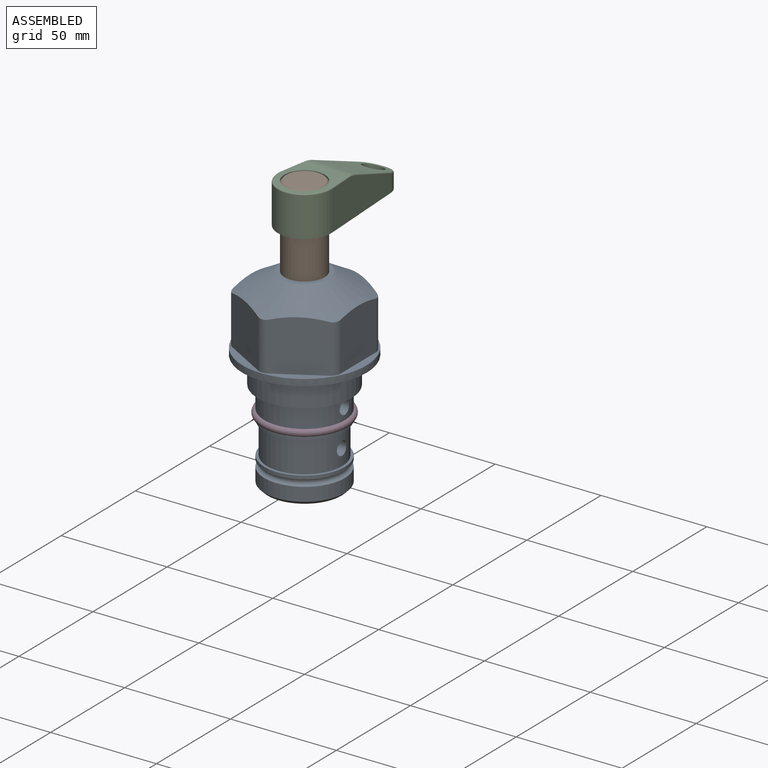
[diagram: assembled view]
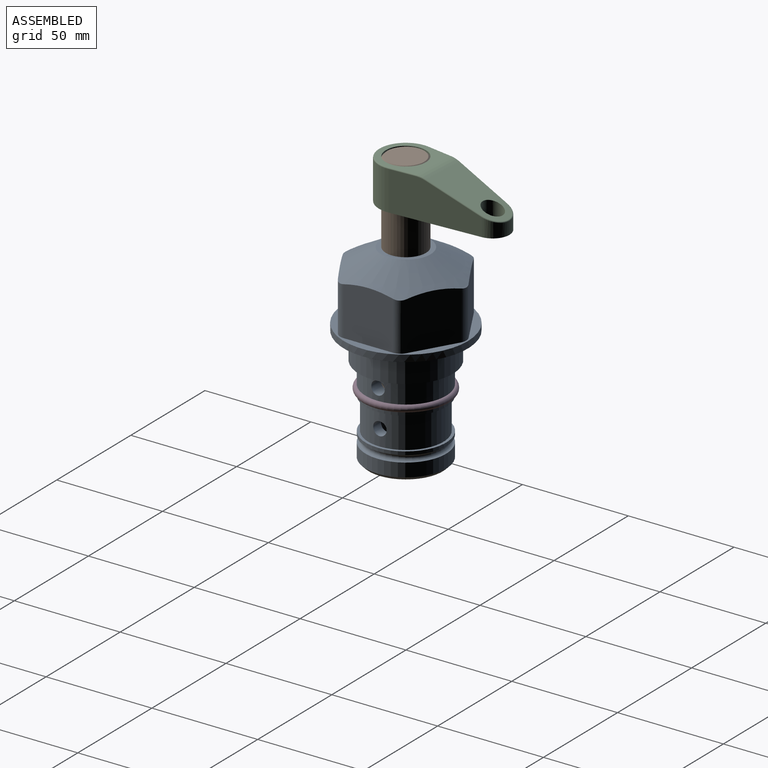
[diagram: assembled view, second angle]
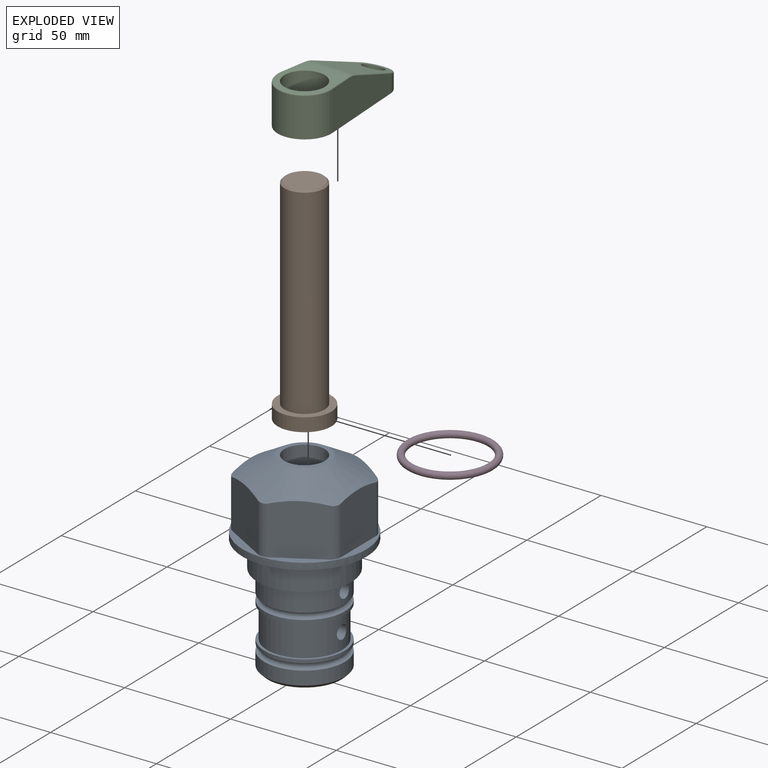
[diagram: exploded view]
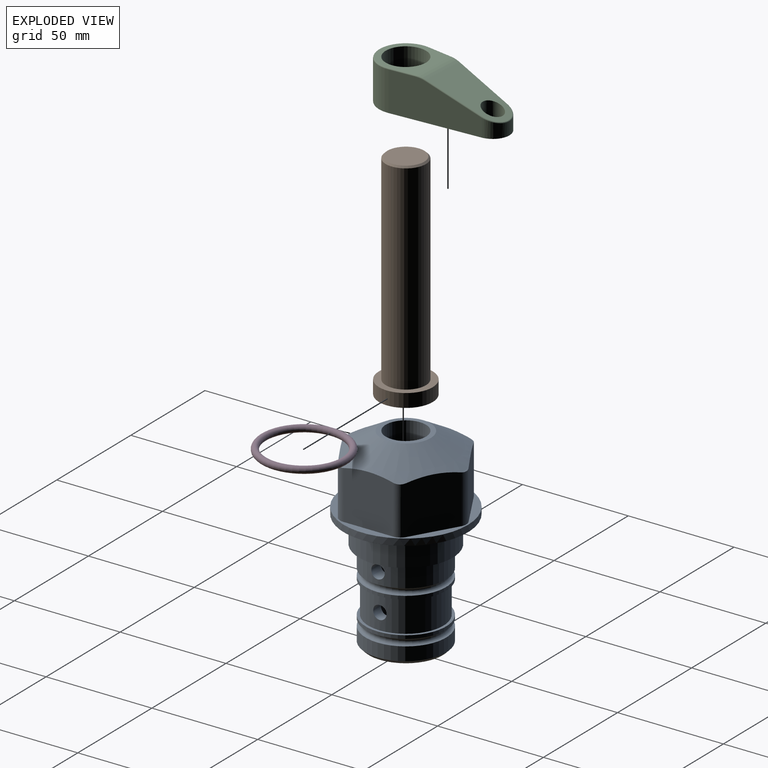
[diagram: exploded view, second angle]
ASSEMBLY  parts=4 mates=2
PART A: 36 faces, bbox 58.7x58.7x91.2 mm
  f0: cylinder r=17.78mm len=35.56mm, axis (0,0,1), area 1670.8mm2, adj f23,f24,f31
  f1: cylinder r=19.05mm len=38.1mm, axis (0,0,1), area 1191.9mm2, adj f26,f27,f30
  f2: plane 58.66x58.66mm, normal (0,0,-1), area 1150.6mm2, adj f3,f28
  f3: cylinder r=29.33mm len=58.66mm, axis (0,0,-1), area 585.1mm2, adj f2,f4
  f4: plane 58.66x58.66mm, normal (0,0,1), area 475.9mm2, adj f3,f5,f6,f7,f8,f9,f10,f11
  f5: plane 24.5x20.32mm, normal (-0.5,0.87,0), area 562.8mm2, adj f4,f15,f16,f17
  f6: plane 24.5x20.32mm, normal (0.5,0.87,0), area 562.8mm2, adj f4,f14,f15,f17
  f7: plane 24.5x23.48mm, normal (1,0,0), area 562.8mm2, adj f4,f13,f14,f17
  f8: plane 24.5x20.32mm, normal (0.5,-0.87,0), area 562.8mm2, adj f4,f12,f13,f17
  f9: plane 24.5x20.32mm, normal (-0.5,-0.87,0), area 562.8mm2, adj f4,f11,f12,f17
  f10: plane 24.5x23.48mm, normal (-1,0,0), area 562.8mm2, adj f4,f11,f16,f17
  f11: cylinder r=5.08mm len=23.01mm, axis (0,0,-1), area 121.2mm2, adj f4,f9,f10,f17
  f12: cylinder r=5.08mm len=23.01mm, axis (0,0,-1), area 121.2mm2, adj f4,f8,f9,f17
  f13: cylinder r=5.08mm len=23.01mm, axis (0,0,-1), area 121.2mm2, adj f4,f7,f8,f17
  f14: cylinder r=5.08mm len=23.01mm, axis (0,0,-1), area 121.2mm2, adj f4,f6,f7,f17
  f15: cylinder r=5.08mm len=23.01mm, axis (0,0,-1), area 121.2mm2, adj f4,f5,f6,f17
  f16: cylinder r=5.08mm len=23.01mm, axis (0,0,-1), area 121.2mm2, adj f4,f5,f10,f17
  f17: cone r=11.73mm half-angle=60deg, axis (0,0,-1), area 2071.8mm2, adj f5,f6,f7,f8,f9,f10,f11,f12
  f18: plane 23.46x23.46mm, normal (0,0,1), area 147.4mm2, adj f17,f35
  f19: plane 34.93x34.93mm, normal (0,0,-1), area 958mm2, adj f29
  f20: cylinder r=19.05mm len=38.1mm, axis (0,0,1), area 760.1mm2, adj f21,f29
  f21: torus R=19.05mm, axis (0,0,1), area 565.3mm2, adj f20,f22
  f22: cylinder r=19.05mm len=38.1mm, axis (0,0,1), area 190mm2, adj f21,f23
  f23: plane 38.1x38.1mm, normal (0,0,1), area 146.9mm2, adj f0,f22
  f24: plane 38.1x38.1mm, normal (0,0,-1), area 146.9mm2, adj f0,f25
  f25: cylinder r=19.05mm len=38.1mm, axis (0,0,1), area 190mm2, adj f24,f26
  f26: torus R=19.05mm, axis (0,0,1), area 565.3mm2, adj f1,f25
  f27: plane 44.45x44.45mm, normal (0,0,-1), area 411.7mm2, adj f1,f28
  f28: cylinder r=22.23mm len=44.45mm, axis (0,0,1), area 1773.5mm2, adj f2,f27
  f29: cone r=19.05mm half-angle=45deg, axis (0,0,1), area 257.5mm2, adj f19,f20
  f30: cylinder r=3.17mm len=6.75mm, axis (-1,0,0), area 128mm2, adj f1,f33
  f31: cylinder r=3.17mm len=6.35mm, axis (-1,0,0), area 102.5mm2, adj f0,f33
  f32: plane 25.4x25.4mm, normal (0,0,1), area 506.7mm2, adj f33
  f33: cylinder r=12.7mm len=66.42mm, axis (0,0,-1), area 5236.2mm2, adj f30,f31,f32,f34
  f34: cone r=9.53mm half-angle=30deg, axis (0,0,-1), area 443.4mm2, adj f33,f35
  f35: cylinder r=9.53mm len=19.05mm, axis (0,0,-1), area 849mm2, adj f18,f34
PART B: 6 faces, bbox 25.4x25.4x101.6 mm
  f0: plane 17.46x17.46mm, normal (0,0,1), area 239.5mm2, adj f5
  f1: plane 25.4x25.4mm, normal (0,0,-1), area 506.7mm2, adj f2
  f2: cylinder r=12.7mm len=25.4mm, axis (0,0,1), area 506.7mm2, adj f1,f3
  f3: plane 25.4x25.4mm, normal (0,0,1), area 221.7mm2, adj f2,f4
  f4: cylinder r=9.53mm len=94.46mm, axis (0,0,1), area 5653mm2, adj f3,f5
  f5: cone r=8.73mm half-angle=45deg, axis (0,0,-1), area 64.4mm2, adj f0,f4
PART C: 44 faces, bbox 27.5x64.5x19.1 mm
  f0: plane 2.3x0.95mm, normal (0,0,-1), area 1mm2, adj f25,f30,f34
  f1: plane 63.5x25.4mm, normal (0,0,-1), area 561.7mm2, adj f2,f3,f4,f5,f6,f7,f19,f20
  f2: cylinder r=12.7mm len=25.4mm, axis (0,0,-1), area 792.2mm2, adj f1,f3,f5,f13
  f3: plane 42.33x18.54mm, normal (0.99,0.11,0), area 647mm2, adj f1,f2,f4,f11,f12,f14
  f4: cylinder r=7.94mm len=15.78mm, axis (0,0,-1), area 158.6mm2, adj f1,f3,f5,f16
  f5: plane 42.33x18.54mm, normal (-0.99,0.11,0), area 647mm2, adj f1,f2,f4,f15,f17,f18
  f6: cylinder r=9.53mm len=19.05mm, axis (0,0,-1), area 1140.1mm2, adj f1,f8
  f7: cylinder r=4.76mm len=10.98mm, axis (0,0,-1), area 276.1mm2, adj f1,f9
  f8: plane 25.83x24.38mm, normal (0,0,1), area 262.2mm2, adj f6,f10,f11,f13,f15
  f9: plane 32.49x20.55mm, normal (0,0.34,0.94), area 489.9mm2, adj f7,f10,f14,f16,f18
  f10: cylinder r=12.7mm len=21.49mm, axis (-1,0,0), area 93.2mm2, adj f8,f9,f12,f17
  f11: cylinder r=0.51mm len=12.34mm, axis (0.11,-0.99,0), area 9.9mm2, adj f3,f8,f12,f13
  f12: bspline ~7.62x1.64mm, area 3.5mm2, adj f3,f10,f11,f14
  f13: torus R=12.19mm, axis (0,0,1), area 33.6mm2, adj f2,f8,f11,f15
  f14: cylinder r=0.51mm len=26.01mm, axis (0.1,-0.93,0.34), area 21.6mm2, adj f3,f9,f12,f16
  f15: cylinder r=0.51mm len=12.34mm, axis (0.11,0.99,0), area 9.9mm2, adj f5,f8,f13,f17
  f16: bspline ~15.78x7.05mm, area 15.7mm2, adj f4,f9,f14,f18
  f17: bspline ~7.62x1.64mm, area 3.5mm2, adj f5,f10,f15,f18
  f18: cylinder r=0.51mm len=26.01mm, axis (0.1,0.93,-0.34), area 21.6mm2, adj f5,f9,f16,f17
  f19: plane 21.6x14.29mm, normal (-0.99,-0.11,0), area 242.6mm2, adj f1,f26,f28,f34,f36,f38
  f20: plane 21.6x14.29mm, normal (0.99,-0.11,0), area 242.6mm2, adj f1,f27,f29,f37,f39,f41
  f21: cylinder r=12.7mm len=14.29mm, axis (0,0,-1), area 173.2mm2, adj f1,f26,f27,f30,f31,f33
  f22: cylinder r=7.94mm len=7.63mm, axis (0,0,-1), area 53.8mm2, adj f1,f28,f29,f42
  f23: plane 2.3x0.95mm, normal (0,0,-1), area 1mm2, adj f25,f33,f37
  f24: plane 17.94x12.32mm, normal (0,-0.34,-0.94), area 191.2mm2, adj f25,f38,f41,f42
  f25: cylinder r=9.53mm len=12.93mm, axis (-1,0,0), area 37.5mm2, adj f0,f23,f24,f31,f36,f39
  f26: cylinder r=1.59mm len=14.29mm, axis (0,0,-1), area 49mm2, adj f1,f19,f21,f32
  f27: cylinder r=1.59mm len=14.29mm, axis (0,0,-1), area 49mm2, adj f1,f20,f21,f35
  f28: cylinder r=1.59mm len=7.28mm, axis (0,0,-1), area 22.1mm2, adj f1,f19,f22,f40
  f29: cylinder r=1.59mm len=7.28mm, axis (0,0,-1), area 22.1mm2, adj f1,f20,f22,f43
  f30: torus R=14.29mm, axis (0,0,1), area 5.8mm2, adj f0,f21,f31,f32
  f31: bspline ~11.06x2.73mm, area 20.8mm2, adj f21,f25,f30,f33
  f32: sphere r=1.59mm, area 5.4mm2, adj f26,f30,f34
  f33: torus R=14.29mm, axis (0,0,1), area 5.8mm2, adj f21,f23,f31,f35
  f34: cylinder r=1.59mm len=1.68mm, axis (-0.11,0.99,0), area 2.4mm2, adj f0,f19,f32,f36
  f35: sphere r=1.59mm, area 5.4mm2, adj f27,f33,f37
  f36: bspline ~5.82x2.33mm, area 7.7mm2, adj f19,f25,f34,f38
  f37: cylinder r=1.59mm len=1.68mm, axis (0.11,0.99,0), area 2.4mm2, adj f20,f23,f35,f39
  f38: cylinder r=1.59mm len=18.33mm, axis (0.1,-0.93,0.34), area 46.7mm2, adj f19,f24,f36,f40
  f39: bspline ~5.82x2.33mm, area 7.7mm2, adj f20,f25,f37,f41
  f40: sphere r=1.59mm, area 3.6mm2, adj f28,f38,f42
  f41: cylinder r=1.59mm len=18.33mm, axis (0.1,0.93,-0.34), area 46.7mm2, adj f20,f24,f39,f43
  f42: bspline ~8.31x1.84mm, area 15.3mm2, adj f22,f24,f40,f43
  f43: sphere r=1.59mm, area 3.6mm2, adj f29,f41,f42
PART D: 1 faces, bbox 44.7x44.7x3.2 mm
  f0: torus R=19.05mm, axis (0,0,1), area 1193.9mm2
PLACE A at identity fixed
PLACE B rot(axis=(0,0,-1),3.3deg) t=(0,0,0.62)mm
PLACE C rot(axis=(0,0,-1),3.3deg) t=(0,0,55.23)mm
PLACE D at identity
MATE cylindrical B.f2 <-> A.f0  axis (0,0,1) through (0,0,26.26)mm
MATE fastened C.f2 <-> B.f2  axis (0,0,-1) through (0,0,74.28)mm
